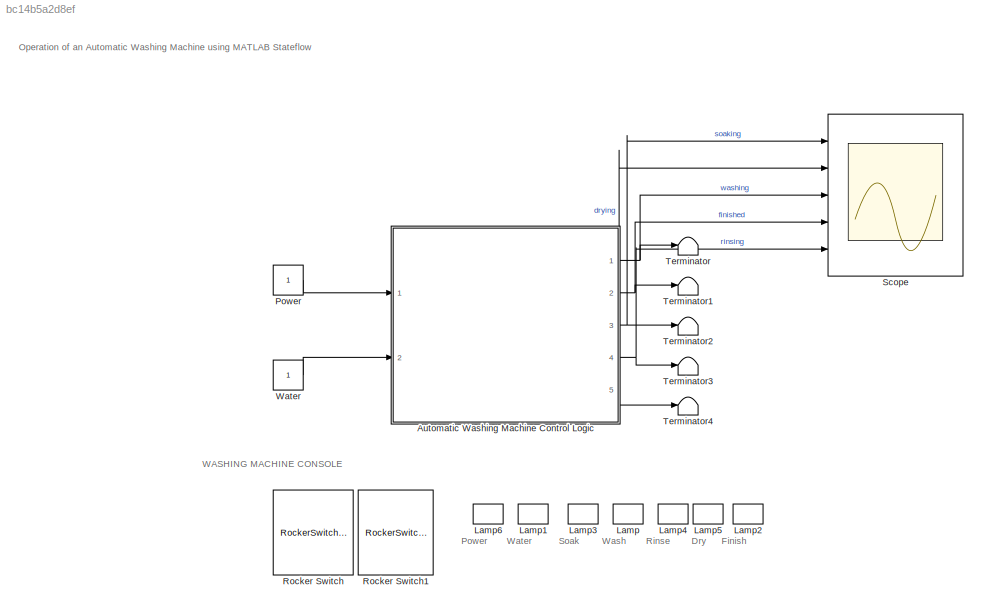
MODEL slx_bc14b5a2d8ef
KIND model
CONFIG AbsTol = auto
CONFIG EnableMultiTasking = off
CONFIG FixedStep = auto
CONFIG MaxStep = auto
CONFIG MinStep = auto
CONFIG RelTol = 1e-3
CONFIG SampleTimeConstraint = Unconstrained
CONFIG Solver = VariableStepAuto
CONFIG SolverName = VariableStepAuto
CONFIG StartTime = 0.0
CONFIG StopTime = inf
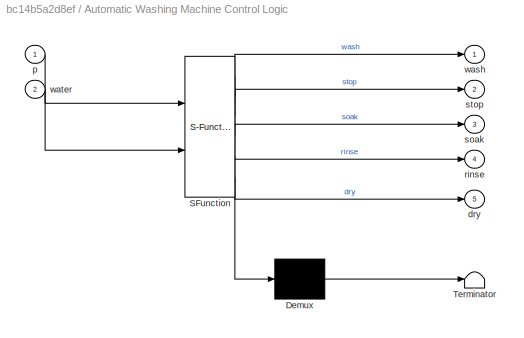
BLOCK [SubSystem] Automatic Washing Machine Control Logic
  ErrorFcn = Stateflow.Translate.translate
  PermitHierarchicalResolution = ExplicitOnly
  Ports = [2, 5]
  RequestExecContextInheritance = off
  SFBlockType = Chart
  TreatAsAtomicUnit = on
BLOCK [Demux] Automatic Washing Machine Control Logic/ Demux 
  Outputs = 1
  Ports = [1, 1]
BLOCK [S-Function] Automatic Washing Machine Control Logic/ SFunction 
  EnableBusSupport = on
  FunctionName = sf_sfun
  PortCounts = [2 6]
  Ports = [2, 6]
  SFcnIsStateOwnerBlock = off
  SFunctionDeploymentMode = off
  Tag = Stateflow S-Function 3
BLOCK [Terminator] Automatic Washing Machine Control Logic/ Terminator 
BLOCK [Outport] Automatic Washing Machine Control Logic/dry
  Port = 5
BLOCK [Inport] Automatic Washing Machine Control Logic/p
BLOCK [Outport] Automatic Washing Machine Control Logic/rinse
  Port = 4
BLOCK [Outport] Automatic Washing Machine Control Logic/soak
  Port = 3
BLOCK [Outport] Automatic Washing Machine Control Logic/stop
  Port = 2
BLOCK [Outport] Automatic Washing Machine Control Logic/wash
BLOCK [Inport] Automatic Washing Machine Control Logic/water
  Port = 2
BLOCK [LampBlock] Lamp
  LabelPosition = Hide
BLOCK [LampBlock] Lamp1
  LabelPosition = Hide
BLOCK [LampBlock] Lamp2
  LabelPosition = Hide
BLOCK [LampBlock] Lamp3
  LabelPosition = Hide
BLOCK [LampBlock] Lamp4
  LabelPosition = Hide
BLOCK [LampBlock] Lamp5
  LabelPosition = Hide
BLOCK [LampBlock] Lamp6
  LabelPosition = Hide
BLOCK [Constant] Power
BLOCK [RockerSwitchBlock] Rocker Switch
  LabelPosition = Bottom
BLOCK [RockerSwitchBlock] Rocker Switch1
  LabelPosition = Bottom
BLOCK [Scope] Scope
  Floating = off
  NumInputPorts = 5
  Ports = [5]
  ScopeSpecificationString = Simulink.scopes.TimeScopeBlockCfg('CurrentConfiguration', extmgr.ConfigurationSet(extmgr.Configuration('Core','General UI',true),extmgr.Configuration('Core','Source UI',true),extmgr.Configuration('Sources','WiredSimulink',true),extmgr.Configuration('Visuals','Time Domain',true,'SerializedDisplays',{struct('MinYLimReal','-1.00000','MaxYLimReal','1.00000','YLabelReal','','MinYLimMag','0.00000','MaxY...<+4771ch>
BLOCK [Terminator] Terminator
BLOCK [Terminator] Terminator1
BLOCK [Terminator] Terminator2
BLOCK [Terminator] Terminator3
BLOCK [Terminator] Terminator4
BLOCK [Constant] Water
ANNOTATION (root): Operation of an Automatic Washing Machine using MATLAB Stateflow
ANNOTATION (root): Dry
ANNOTATION (root): Finish
ANNOTATION (root): Power
ANNOTATION (root): Rinse
ANNOTATION (root): Soak
ANNOTATION (root): WASHING MACHINE CONSOLE
ANNOTATION (root): Wash
ANNOTATION (root): Water
NET Automatic Washing Machine Control Logic:1 -> Scope:3, Terminator:1
NET Automatic Washing Machine Control Logic:2 -> Scope:4, Terminator1:1
NET Automatic Washing Machine Control Logic:3 -> Scope:1, Terminator2:1
NET Automatic Washing Machine Control Logic:4 -> Scope:5, Terminator3:1
NET Automatic Washing Machine Control Logic:5 -> Scope:2, Terminator4:1
LINE Power:1 -> Automatic Washing Machine Control Logic:1
LINE Water:1 -> Automatic Washing Machine Control Logic:2
note: NET lines group one-source signal fan-out (src -> all destinations, sorted); 1:1 wires keep LINE
CHART Automatic Washing Machine Control Logic states=14 transitions=28
  STATE_LABEL 'Power\n'
  STATE_LABEL 'Off'
  STATE_LABEL 'ON'
  STATE_LABEL 'Water_supply\nentry: w=1;\nexit: w=0'
  STATE_LABEL 'a'
  STATE_LABEL 'Soaking\nentry: soak=1;\n exit: soak=0;'
  STATE_LABEL 'b'
  STATE_LABEL 'Washing\nentry: wash=1;\n exit: wash=0;'
  STATE_LABEL 'c'
  STATE_LABEL 'Rinsing\nentry: rinse=1;\n exit: rinse=0;'
  STATE_LABEL 'd'
  STATE_LABEL 'Drying\nentry: dry=1;\n exit: dry=0;'
  STATE_LABEL 'e'
  STATE_LABEL 'Stop\nentry: stop=0;\nexit: stop=1;'
CHART  states=0 transitions=0
